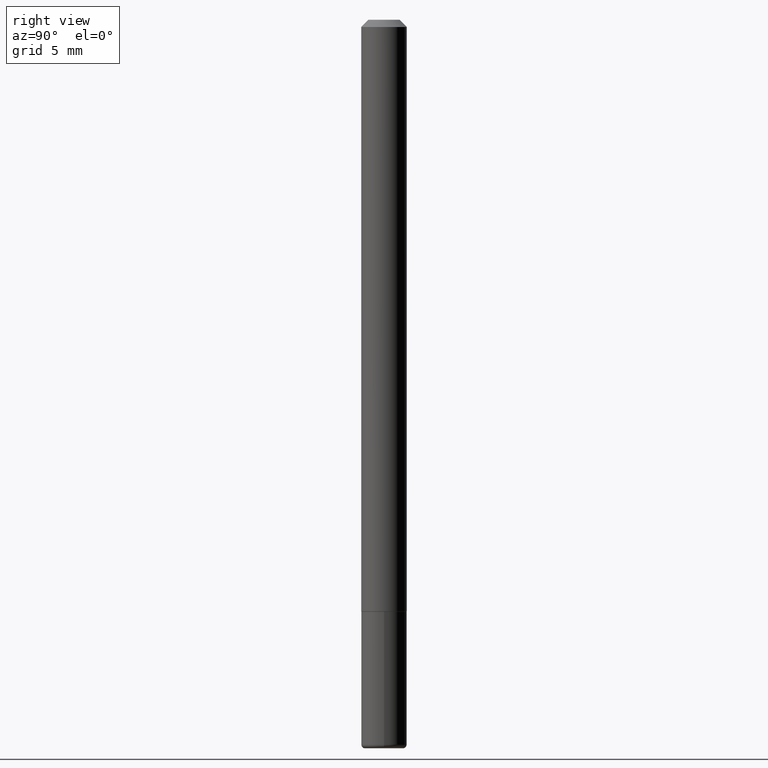
[diagram: clean part render]
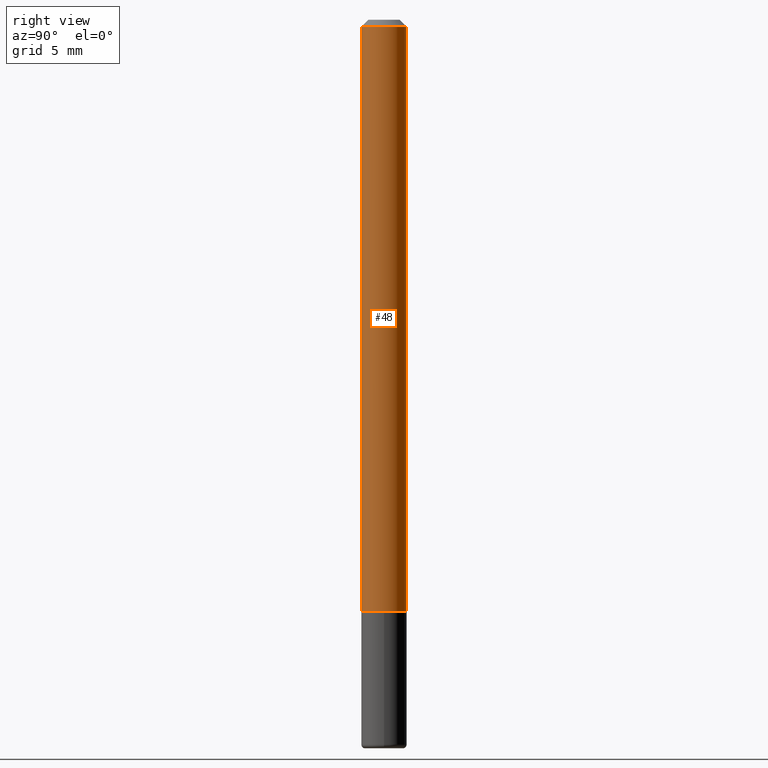
[diagram: same view with one face highlighted and labeled with its STEP entity id]
A machine part, right view. The second image highlights one B-rep face of the part: STEP entity #48.
In plain terms, the highlighted cylindrical surface (edge-blend (fillet) strip) has radius 1.5875 mm, axis along (-0, 0, 1).
Its self-contained STEP definition (entity closure, byte-faithful):
#4 = VECTOR ( 'NONE', #348, 39.37007874015748143 ) ;
#13 = AXIS2_PLACEMENT_3D ( 'NONE', #50, #179, #343 ) ;
#16 = EDGE_CURVE ( 'NONE', #279, #351, #217, .T. ) ;
#18 = VERTEX_POINT ( 'NONE', #64 ) ;
#48 = ADVANCED_FACE ( 'NONE', ( #354 ), #224, .T. ) ;
#50 = CARTESIAN_POINT ( 'NONE',  ( 3.987813921643159440E-29, -5.646719227281216646E-15, -1.624000000000000110 ) ) ;
#55 = LINE ( 'NONE', #238, #283 ) ;
#64 = CARTESIAN_POINT ( 'NONE',  ( -4.287811248607203282E-16, -0.06250000000000008327, -0.01999999999999985123 ) ) ;
#79 = CIRCLE ( 'NONE', #13, 0.06250000000000012490 ) ;
#136 = CARTESIAN_POINT ( 'NONE',  ( 4.440892098500834224E-16, 0.06249999999999447664, -1.624000000000000554 ) ) ;
#140 = ORIENTED_EDGE ( 'NONE', *, *, #335, .T. ) ;
#155 = DIRECTION ( 'NONE',  ( -2.455550444361550875E-29, 3.477043859163310348E-15, 1.000000000000000000 ) ) ;
#162 = DIRECTION ( 'NONE',  ( -6.982962677686265922E-15, -1.000000000000000000, 3.477043859163310348E-15 ) ) ;
#177 = ORIENTED_EDGE ( 'NONE', *, *, #330, .F. ) ;
#179 = DIRECTION ( 'NONE',  ( -2.455550444361550875E-29, 3.477043859163310348E-15, 1.000000000000000000 ) ) ;
#183 = EDGE_LOOP ( 'NONE', ( #140, #393, #177, #270 ) ) ;
#188 = DIRECTION ( 'NONE',  ( -6.982962677686265922E-15, -1.000000000000000000, 3.483106191921934765E-15 ) ) ;
#201 = VERTEX_POINT ( 'NONE', #386 ) ;
#206 = AXIS2_PLACEMENT_3D ( 'NONE', #413, #155, #162 ) ;
#214 = DIRECTION ( 'NONE',  ( -2.455550444361550875E-29, 3.477043859163310348E-15, 1.000000000000000000 ) ) ;
#217 = LINE ( 'NONE', #382, #4 ) ;
#224 = CYLINDRICAL_SURFACE ( 'NONE', #206, 0.06250000000000006939 ) ;
#238 = CARTESIAN_POINT ( 'NONE',  ( -4.364351673553921131E-16, -0.06250000000000006939, 2.173152411977071433E-16 ) ) ;
#243 = DIRECTION ( 'NONE',  ( -2.455550444361550595E-29, 3.477043859163310348E-15, 1.000000000000000000 ) ) ;
#270 = ORIENTED_EDGE ( 'NONE', *, *, #344, .F. ) ;
#279 = VERTEX_POINT ( 'NONE', #136 ) ;
#283 = VECTOR ( 'NONE', #243, 39.37007874015748143 ) ;
#330 = EDGE_CURVE ( 'NONE', #18, #351, #377, .T. ) ;
#335 = EDGE_CURVE ( 'NONE', #201, #279, #79, .T. ) ;
#341 = CARTESIAN_POINT ( 'NONE',  ( 4.911100888723118566E-31, -6.954087718326643672E-17, -0.02000000000000006981 ) ) ;
#343 = DIRECTION ( 'NONE',  ( -6.982962677686265922E-15, -1.000000000000000000, 4.370956789862812472E-15 ) ) ;
#344 = EDGE_CURVE ( 'NONE', #201, #18, #55, .T. ) ;
#348 = DIRECTION ( 'NONE',  ( -2.455550444361550595E-29, 3.477043859163310348E-15, 1.000000000000000000 ) ) ;
#351 = VERTEX_POINT ( 'NONE', #373 ) ;
#354 = FACE_OUTER_BOUND ( 'NONE', #183, .T. ) ;
#373 = CARTESIAN_POINT ( 'NONE',  ( 4.364351673553922118E-16, 0.06249999999999995143, -0.02000000000000028491 ) ) ;
#377 = CIRCLE ( 'NONE', #383, 0.06250000000000001388 ) ;
#382 = CARTESIAN_POINT ( 'NONE',  ( 4.440892098500630106E-16, 0.06250000000000006939, -2.173152411977071433E-16 ) ) ;
#383 = AXIS2_PLACEMENT_3D ( 'NONE', #341, #214, #188 ) ;
#386 = CARTESIAN_POINT ( 'NONE',  ( -4.364351673553526701E-16, -0.06250000000000577316, -1.623999999999999888 ) ) ;
#393 = ORIENTED_EDGE ( 'NONE', *, *, #16, .T. ) ;
#413 = CARTESIAN_POINT ( 'NONE',  ( 0.000000000000000000, 0.000000000000000000, 0.000000000000000000 ) ) ;